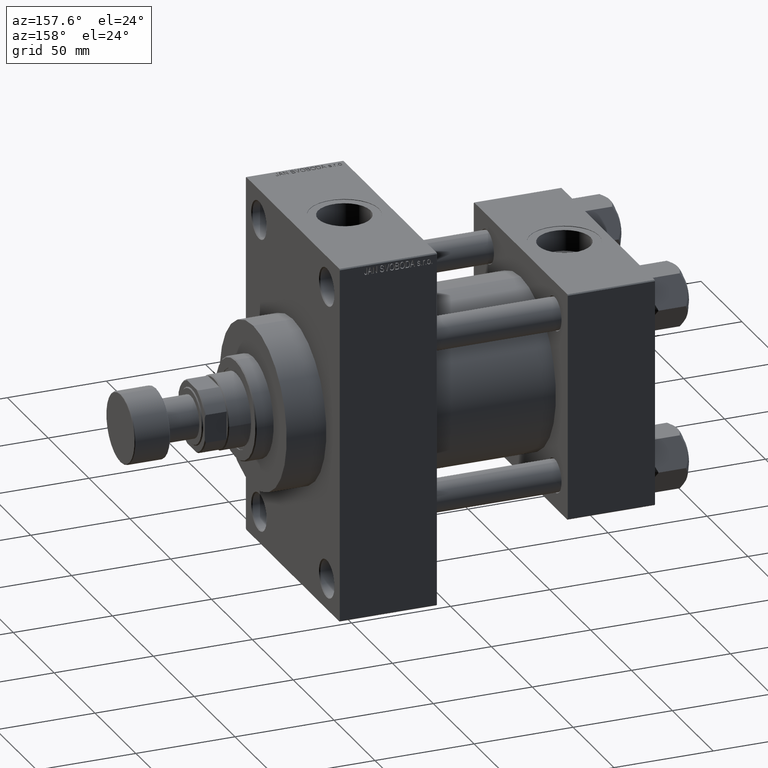
[diagram: clean part render]
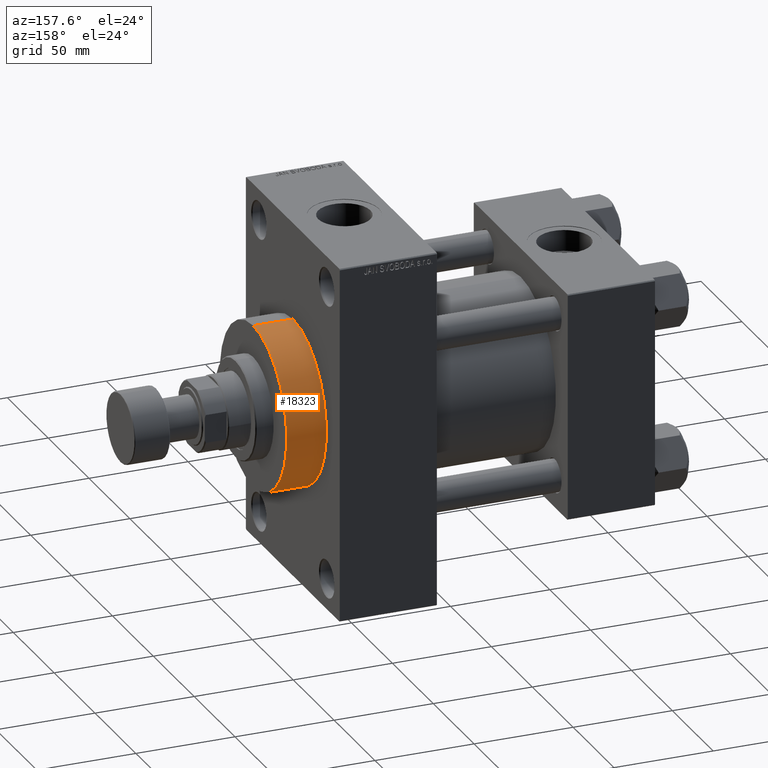
[diagram: same view with one face highlighted and labeled with its STEP entity id]
A machine part, auxiliary view. The second image highlights one B-rep face of the part: STEP entity #18323.
In plain terms, the highlighted cylindrical surface (partial cylindrical patch) has radius 41 mm, axis along (-1, -0, -0).
Its self-contained STEP definition (entity closure, byte-faithful):
#483 = DIRECTION ( 'NONE',  ( 1.000000000000000000, 0.000000000000000000, 0.000000000000000000 ) ) ;
#2128 = EDGE_LOOP ( 'NONE', ( #7556, #24745, #21640, #7677 ) ) ;
#3332 = DIRECTION ( 'NONE',  ( 0.000000000000000000, 0.000000000000000000, 1.000000000000000000 ) ) ;
#3856 = VERTEX_POINT ( 'NONE', #42938 ) ;
#4316 = EDGE_CURVE ( 'NONE', #10502, #12640, #43839, .T. ) ;
#5861 = EDGE_CURVE ( 'NONE', #12640, #43964, #20939, .T. ) ;
#6045 = CIRCLE ( 'NONE', #35599, 41.00000000000000000 ) ;
#7556 = ORIENTED_EDGE ( 'NONE', *, *, #4316, .F. ) ;
#7677 = ORIENTED_EDGE ( 'NONE', *, *, #5861, .F. ) ;
#10200 = CARTESIAN_POINT ( 'NONE',  ( 179.0000000000000000, 5.021051876504148963E-15, -41.00000000000000000 ) ) ;
#10502 = VERTEX_POINT ( 'NONE', #31510 ) ;
#12640 = VERTEX_POINT ( 'NONE', #29686 ) ;
#12852 = VECTOR ( 'NONE', #38733, 1000.000000000000000 ) ;
#12864 = EDGE_CURVE ( 'NONE', #10502, #3856, #47428, .T. ) ;
#16156 = CARTESIAN_POINT ( 'NONE',  ( 159.0000000000000000, 0.000000000000000000, 41.00000000000000000 ) ) ;
#17944 = CYLINDRICAL_SURFACE ( 'NONE', #43432, 41.00000000000000000 ) ;
#18323 = ADVANCED_FACE ( 'NONE', ( #20399 ), #17944, .T. ) ;
#18740 = DIRECTION ( 'NONE',  ( 0.000000000000000000, 0.000000000000000000, -1.000000000000000000 ) ) ;
#20399 = FACE_OUTER_BOUND ( 'NONE', #2128, .T. ) ;
#20939 = LINE ( 'NONE', #32121, #12852 ) ;
#21640 = ORIENTED_EDGE ( 'NONE', *, *, #40431, .T. ) ;
#24745 = ORIENTED_EDGE ( 'NONE', *, *, #12864, .T. ) ;
#25031 = DIRECTION ( 'NONE',  ( -1.000000000000000000, -0.000000000000000000, -0.000000000000000000 ) ) ;
#26270 = DIRECTION ( 'NONE',  ( 1.000000000000000000, 0.000000000000000000, 0.000000000000000000 ) ) ;
#29686 = CARTESIAN_POINT ( 'NONE',  ( 179.0000000000000000, 0.000000000000000000, 41.00000000000000000 ) ) ;
#29856 = AXIS2_PLACEMENT_3D ( 'NONE', #33582, #483, #18740 ) ;
#31510 = CARTESIAN_POINT ( 'NONE',  ( 179.0000000000000000, 5.021051876504148963E-15, -41.00000000000000000 ) ) ;
#32121 = CARTESIAN_POINT ( 'NONE',  ( 179.0000000000000000, 0.000000000000000000, 41.00000000000000000 ) ) ;
#33582 = CARTESIAN_POINT ( 'NONE',  ( 179.0000000000000000, 0.000000000000000000, 0.000000000000000000 ) ) ;
#35599 = AXIS2_PLACEMENT_3D ( 'NONE', #37243, #26270, #41122 ) ;
#36692 = CARTESIAN_POINT ( 'NONE',  ( 179.0000000000000000, 0.000000000000000000, 0.000000000000000000 ) ) ;
#37243 = CARTESIAN_POINT ( 'NONE',  ( 159.0000000000000000, 0.000000000000000000, 0.000000000000000000 ) ) ;
#38733 = DIRECTION ( 'NONE',  ( -1.000000000000000000, -0.000000000000000000, -0.000000000000000000 ) ) ;
#40431 = EDGE_CURVE ( 'NONE', #3856, #43964, #6045, .T. ) ;
#41122 = DIRECTION ( 'NONE',  ( 0.000000000000000000, 0.000000000000000000, -1.000000000000000000 ) ) ;
#42938 = CARTESIAN_POINT ( 'NONE',  ( 159.0000000000000000, 5.021051876504148963E-15, -41.00000000000000000 ) ) ;
#43432 = AXIS2_PLACEMENT_3D ( 'NONE', #36692, #46928, #3332 ) ;
#43839 = CIRCLE ( 'NONE', #29856, 41.00000000000000000 ) ;
#43964 = VERTEX_POINT ( 'NONE', #16156 ) ;
#46928 = DIRECTION ( 'NONE',  ( -1.000000000000000000, -0.000000000000000000, -0.000000000000000000 ) ) ;
#47428 = LINE ( 'NONE', #10200, #47986 ) ;
#47986 = VECTOR ( 'NONE', #25031, 1000.000000000000000 ) ;